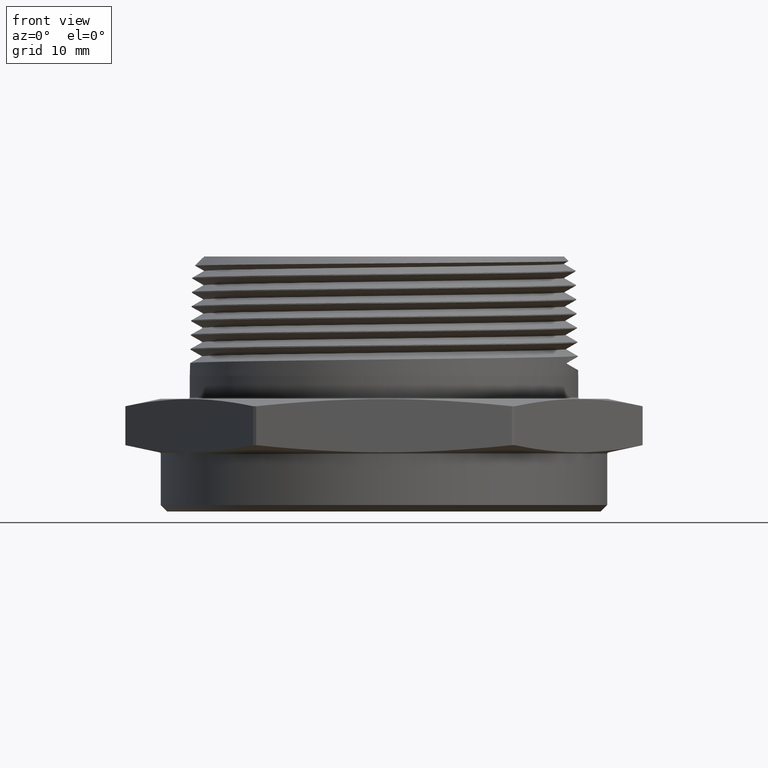
[diagram: clean part render]
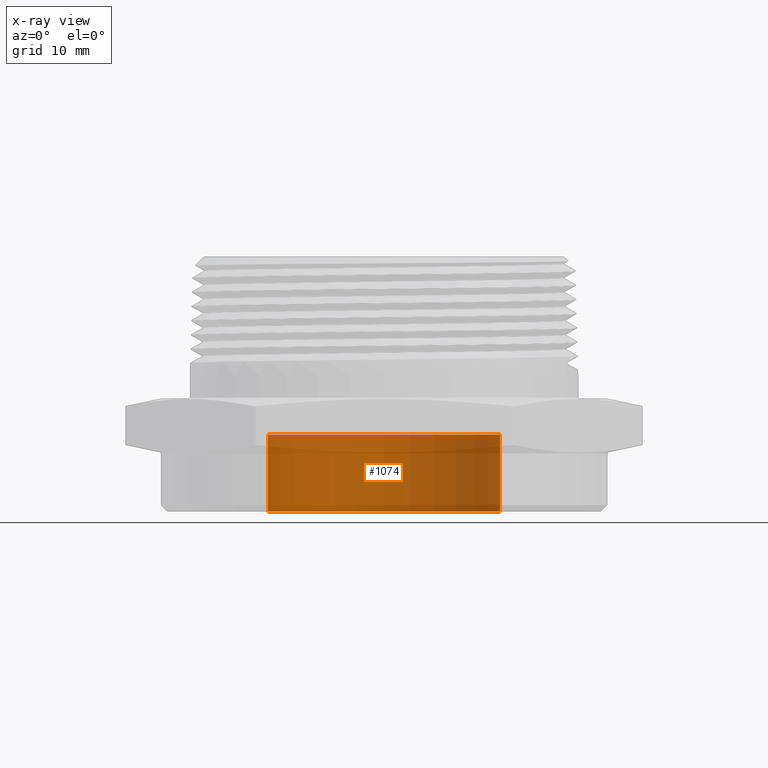
[diagram: x-ray — body ghosted, one internal face saturated and labeled with its STEP entity id]
A machine part, front view, then the same camera in x-ray: the body is ghosted and one INTERNAL B-rep face — a face not visible from any outside direction — is saturated and labeled: STEP entity #1074.
In plain terms, the highlighted cylindrical surface (partial cylindrical patch) has radius 18.034 mm, axis along (-0, -0, -1).
Its self-contained STEP definition (entity closure, byte-faithful):
#246 = VERTEX_POINT ( 'NONE', #705 ) ;
#262 = VERTEX_POINT ( 'NONE', #721 ) ;
#280 = VERTEX_POINT ( 'NONE', #739 ) ;
#289 = VERTEX_POINT ( 'NONE', #669 ) ;
#324 = LINE ( 'NONE', #695, #332 ) ;
#325 = VECTOR ( 'NONE', #1662, 39.37007874015748100 ) ;
#327 = LINE ( 'NONE', #697, #325 ) ;
#330 = CIRCLE ( 'NONE', #1892, 0.7099999999999999600 ) ;
#331 = CIRCLE ( 'NONE', #1894, 0.7099999999999999600 ) ;
#332 = VECTOR ( 'NONE', #696, 39.37007874015748100 ) ;
#492 = EDGE_CURVE ( 'NONE', #280, #246, #324, .T. ) ;
#493 = EDGE_CURVE ( 'NONE', #289, #280, #330, .T. ) ;
#495 = EDGE_CURVE ( 'NONE', #289, #262, #327, .T. ) ;
#496 = EDGE_CURVE ( 'NONE', #262, #246, #331, .T. ) ;
#669 = CARTESIAN_POINT ( 'NONE',  ( 0.7099999999999999600, 8.694992273946207000E-017, 0.4699999999999999700 ) ) ;
#695 = CARTESIAN_POINT ( 'NONE',  ( -0.7099999999999999600, 0.0000000000000000000, 0.4699999999999999700 ) ) ;
#696 = DIRECTION ( 'NONE',  ( -0.0000000000000000000, -0.0000000000000000000, -1.000000000000000000 ) ) ;
#697 = CARTESIAN_POINT ( 'NONE',  ( 0.7099999999999999600, 8.694992273946207000E-017, 0.4699999999999999700 ) ) ;
#705 = CARTESIAN_POINT ( 'NONE',  ( -0.7099999999999999600, 0.0000000000000000000, 0.0000000000000000000 ) ) ;
#721 = CARTESIAN_POINT ( 'NONE',  ( 0.7099999999999999600, 8.694992273946207000E-017, 0.0000000000000000000 ) ) ;
#739 = CARTESIAN_POINT ( 'NONE',  ( -0.7099999999999999600, 0.0000000000000000000, 0.4699999999999999700 ) ) ;
#1074 = ADVANCED_FACE ( 'NONE', ( #7220 ), #7240, .T. ) ;
#1662 = DIRECTION ( 'NONE',  ( -0.0000000000000000000, -0.0000000000000000000, -1.000000000000000000 ) ) ;
#1663 = CARTESIAN_POINT ( 'NONE',  ( 0.0000000000000000000, 0.0000000000000000000, 0.4699999999999999700 ) ) ;
#1664 = DIRECTION ( 'NONE',  ( 0.0000000000000000000, 0.0000000000000000000, 1.000000000000000000 ) ) ;
#1665 = DIRECTION ( 'NONE',  ( 1.000000000000000000, 0.0000000000000000000, 0.0000000000000000000 ) ) ;
#1673 = CARTESIAN_POINT ( 'NONE',  ( 0.0000000000000000000, 0.0000000000000000000, 0.0000000000000000000 ) ) ;
#1674 = DIRECTION ( 'NONE',  ( 0.0000000000000000000, 0.0000000000000000000, 1.000000000000000000 ) ) ;
#1675 = DIRECTION ( 'NONE',  ( 1.000000000000000000, 0.0000000000000000000, 0.0000000000000000000 ) ) ;
#1892 = AXIS2_PLACEMENT_3D ( 'NONE', #1663, #1664, #1665 ) ;
#1894 = AXIS2_PLACEMENT_3D ( 'NONE', #1673, #1674, #1675 ) ;
#1967 = AXIS2_PLACEMENT_3D ( 'NONE', #7025, #7024, #7033 ) ;
#7024 = DIRECTION ( 'NONE',  ( -0.0000000000000000000, -0.0000000000000000000, -1.000000000000000000 ) ) ;
#7025 = CARTESIAN_POINT ( 'NONE',  ( 0.0000000000000000000, 0.0000000000000000000, 0.4699999999999999700 ) ) ;
#7033 = DIRECTION ( 'NONE',  ( -1.000000000000000000, 0.0000000000000000000, 0.0000000000000000000 ) ) ;
#7220 = FACE_OUTER_BOUND ( 'NONE', #7835, .T. ) ;
#7240 = CYLINDRICAL_SURFACE ( 'NONE', #1967, 0.7099999999999999600 ) ;
#7647 = ORIENTED_EDGE ( 'NONE', *, *, #495, .T. ) ;
#7648 = ORIENTED_EDGE ( 'NONE', *, *, #493, .F. ) ;
#7649 = ORIENTED_EDGE ( 'NONE', *, *, #496, .T. ) ;
#7650 = ORIENTED_EDGE ( 'NONE', *, *, #492, .F. ) ;
#7835 = EDGE_LOOP ( 'NONE', ( #7648, #7647, #7649, #7650 ) ) ;